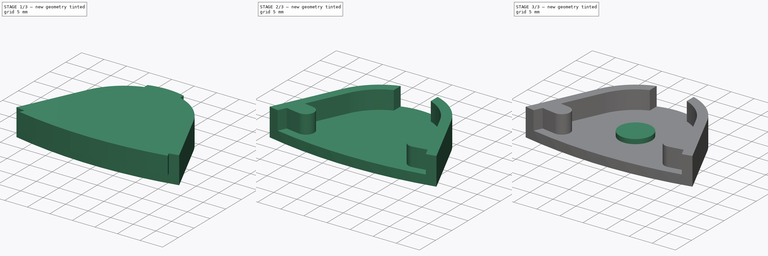
[diagram: build sequence overview — one tinted view per stage of 3, left to right]
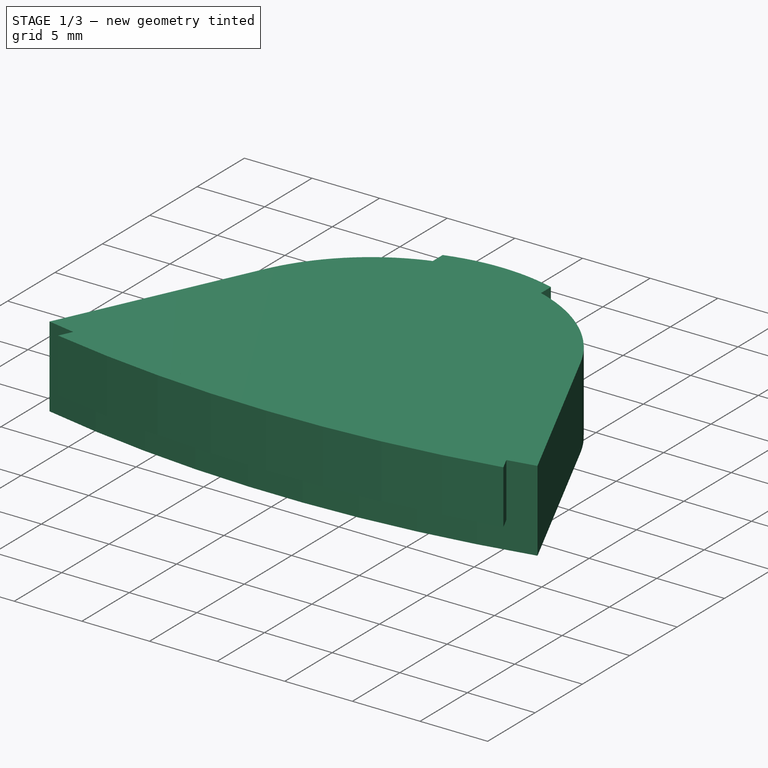
[diagram: stage 1 of 3 — iso view after this stage's code; geometry added in this stage tinted green]
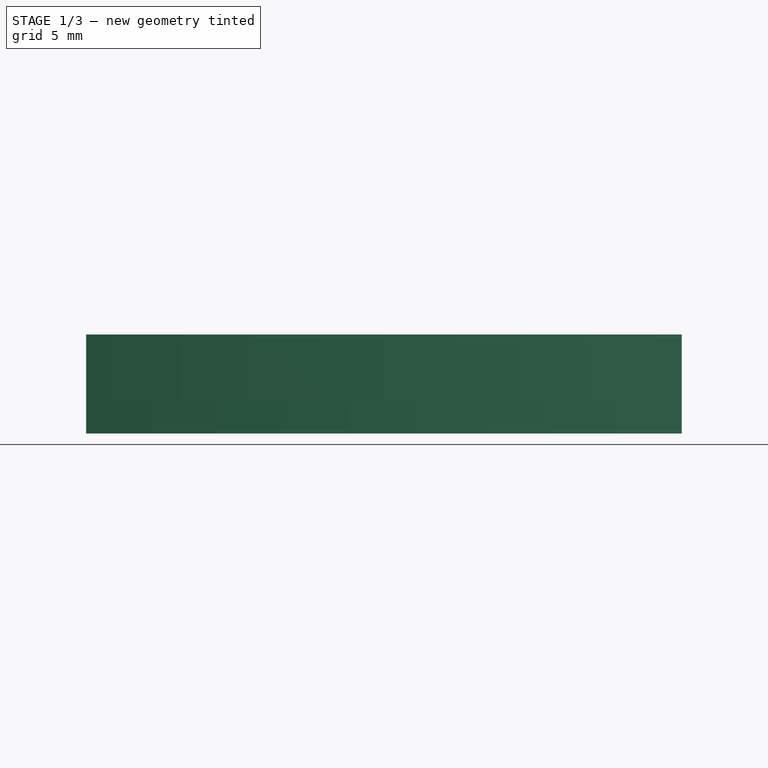
[diagram: stage 1 of 3 — front view after this stage's code; geometry added in this stage tinted green]
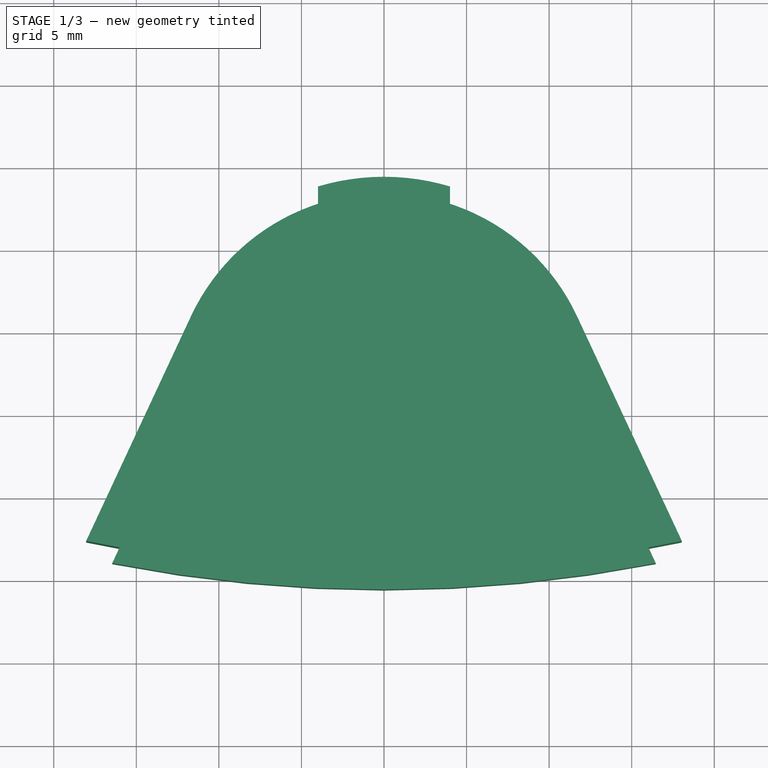
[diagram: stage 1 of 3 — top view after this stage's code; geometry added in this stage tinted green]
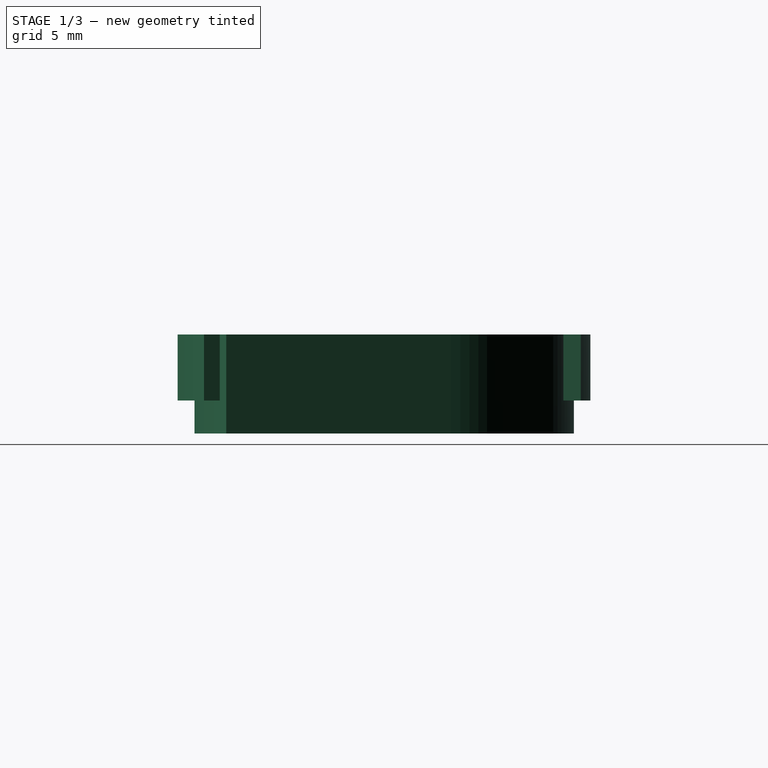
[diagram: stage 1 of 3 — right view after this stage's code; geometry added in this stage tinted green]
FCSTD DOCUMENT  (FreeCAD 0.14R3692 (Git))
Label: Mount_FSR_V2_Cap
License: CC-BY 3.0
LicenseURL: http://creativecommons.org/licenses/by/3.0/
objects: Sketcher::SketchObject×3, PartDesign::Pad×3, Part::Cut×1, Part::MultiFuse×1
note: 11 computed .brp shape members not serialized (recipe doc carries the construction recipe); baked Part::Feature solids carry a one-line shape summary decoded from their .brp

FEATURE [Sketcher::SketchObject] Sketch  label="Base_Sketch"
  sketch-geometry (4):
    g0: ArcOfCircle CenterX=0 CenterY=0 CenterZ=0 NormalX=0 NormalY=0 NormalZ=1 Radius=84.6 StartAngle=4.49754 EndAngle=4.92723
    g1: ArcOfCircle CenterX=0 CenterY=-74.5 CenterZ=0 NormalX=0 NormalY=0 NormalZ=1 Radius=12.9 StartAngle=0.436329 EndAngle=2.70526
    g2: LineSegment StartX=-18.0363 StartY=-82.655 StartZ=0 EndX=-11.6914 EndY=-69.0483 EndZ=0
    g3: LineSegment StartX=18.0363 StartY=-82.655 StartZ=0 EndX=11.6914 EndY=-69.0483 EndZ=0
  constraints (13):
    c: Coincident(g0,g-1)
    c: Radius(g0) = 84.6
    c: Symmetric(g0,g0,g-2)
    c: PointOnObject(g1,g-2)
    c: Radius(g1) = 12.9
    c: Coincident(g2,g0)
    c: Coincident(g2,g1)
    c: Coincident(g3,g0)
    c: Coincident(g3,g1)
    c: Tangent(g1,g3)
    c: Tangent(g1,g2)
    c: DistanceY(g-1,g1) = -74.5
    c: Angle(g-2,g2) = 2.70526
FEATURE [PartDesign::Pad] Pad  label="Base_Pad"
  Length = 6
  Length2 = 100
  Sketch = -> Sketch
  Type = 0
FEATURE [Sketcher::SketchObject] Sketch001  label="Groove_Sketch"
  Placement = pos=(0,0,2) rot=(0,0,1;0rad)
  sketch-geometry (16):
    g0: ArcOfCircle CenterX=0 CenterY=-74.5 CenterZ=0 NormalX=0 NormalY=0 NormalZ=1 Radius=10.9 StartAngle=1.94655 EndAngle=2.70526
    g1: LineSegment StartX=-16.4581 StartY=-84.0029 StartZ=0 EndX=-15.2377 EndY=-81.3858 EndZ=0
    g2: LineSegment StartX=-13.6646 StartY=-78.0123 StartZ=0 EndX=-9.87875 EndY=-69.8935 EndZ=0
    g3: LineSegment StartX=4 StartY=-61.188 StartZ=0 EndX=4 EndY=-64.3605 EndZ=0
    g4: ArcOfCircle CenterX=0 CenterY=-74.5 CenterZ=0 NormalX=0 NormalY=0 NormalZ=1 Radius=10.9 StartAngle=0.436333 EndAngle=1.19504
    g5: LineSegment StartX=9.87875 StartY=-69.8935 StartZ=0 EndX=13.6646 EndY=-78.0123 EndZ=0
    g6: ArcOfCircle CenterX=0 CenterY=0 CenterZ=0 NormalX=0 NormalY=0 NormalZ=1 Radius=79.2 StartAngle=4.86108 EndAngle=4.88579
    g7: LineSegment StartX=16.4581 StartY=-84.0029 StartZ=0 EndX=15.2377 EndY=-81.3858 EndZ=0
    g8: ArcOfCircle CenterX=0 CenterY=0 CenterZ=0 NormalX=0 NormalY=0 NormalZ=1 Radius=82.8 StartAngle=4.86108 EndAngle=4.89747
    g9: ArcOfCircle CenterX=12 CenterY=-80.1062 CenterZ=0 NormalX=0 NormalY=0 NormalZ=1 Radius=1.8 StartAngle=1.7195 EndAngle=4.86108
    g10: ArcOfCircle CenterX=0 CenterY=0 CenterZ=0 NormalX=0 NormalY=0 NormalZ=1 Radius=85.6 StartAngle=4.51892 EndAngle=4.90586
    g11: ArcOfCircle CenterX=0 CenterY=-74.5 CenterZ=0 NormalX=0 NormalY=0 NormalZ=1 Radius=13.9 StartAngle=1.2789 EndAngle=1.86269
    g12: LineSegment StartX=-4 StartY=-64.3605 StartZ=0 EndX=-4 EndY=-61.188 EndZ=0
    g13: ArcOfCircle CenterX=0 CenterY=0 CenterZ=0 NormalX=0 NormalY=0 NormalZ=1 Radius=79.2 StartAngle=4.53899 EndAngle=4.56369
    g14: ArcOfCircle CenterX=0 CenterY=-1e-12 CenterZ=0 NormalX=0 NormalY=0 NormalZ=1 Radius=82.8 StartAngle=4.5273 EndAngle=4.56369
    g15: ArcOfCircle CenterX=-12 CenterY=-80.1062 CenterZ=0 NormalX=0 NormalY=0 NormalZ=1 Radius=1.8 StartAngle=4.56369 EndAngle=7.70528
  constraints (46):
    c: Symmetric(g11,g3,g-2)
    c: Radius(g0) = 10.9
    c: DistanceY(g-1,g0) = -74.5
    c: Symmetric(g1,g7,g-2)
    c: Coincident(g2,g0)
    c: Tangent(g2,g0)
    c: Symmetric(g0,g3,g-2)
    c: Coincident(g4,g0)
    c: Coincident(g4,g3)
    c: Symmetric(g4,g0,g-2)
    c: Coincident(g5,g4)
    c: Symmetric(g2,g5,g-2)
    c: Coincident(g6,g-1)
    c: Coincident(g6,g5)
    c: Symmetric(g1,g7,g-2)
    c: Coincident(g8,g-1)
    c: Coincident(g8,g7)
    c: Coincident(g9,g6)
    c: Coincident(g9,g8)
    c: Coincident(g10,g-1)
    c: Coincident(g10,g1)
    c: Coincident(g10,g7)
    c: Tangent(g1,g2)
    c: Radius(g10) = 85.6
    c: Angle(g-2,g1) = 2.70526
    c: DistanceX(g-1,g0) = -4
    c: Coincident(g11,g0)
    c: Coincident(g11,g3)
    c: Radius(g11) = 13.9
    c: Coincident(g12,g0)
    c: Coincident(g12,g11)
    c: Vertical(g12)
    c: Coincident(g13,g-1)
    c: Coincident(g13,g2)
    c: Radius(g13) = 79.2
    c: Coincident(g14,g-1)
    c: Coincident(g14,g1)
    c: Radius(g14) = 82.8
    c: Coincident(g15,g13)
    c: Coincident(g15,g14)
    c: Tangent(g15,g14)
    c: DistanceX(g-1,g15) = -12
    c: Distance(g-1,g15) = 81
    c: Symmetric(g13,g6,g-2)
    c: Symmetric(g15,g9,g-2)
    c: Symmetric(g14,g8,g-2)
FEATURE [PartDesign::Pad] Pad001  label="Groove_Pad"
  Length = 4
  Length2 = 100
  Placement = pos=(0,0,2) rot=(0,0,1;0rad)
  Sketch = -> Sketch001
  Type = 0
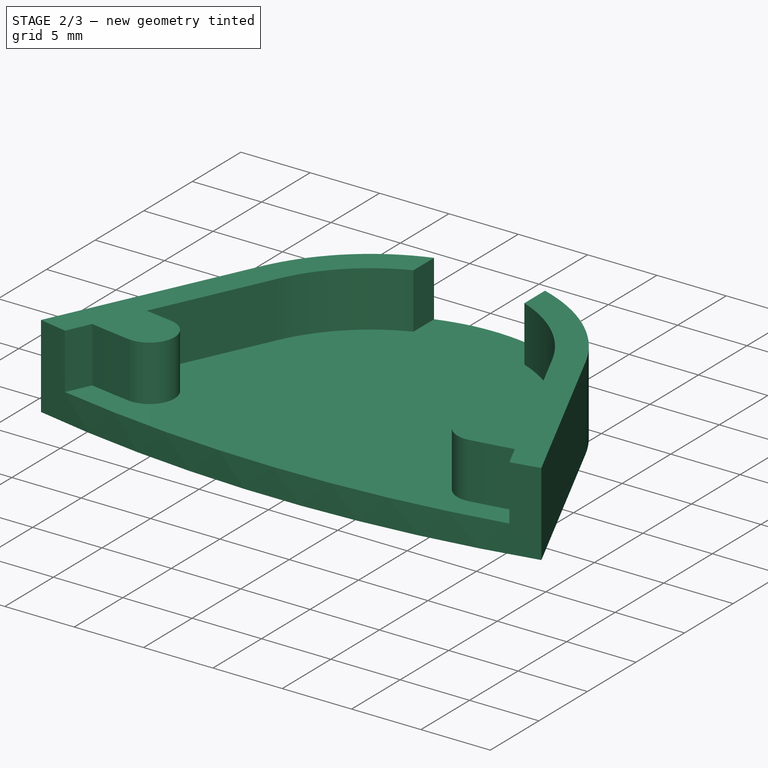
[diagram: stage 2 of 3 — iso view after this stage's code; geometry added in this stage tinted green]
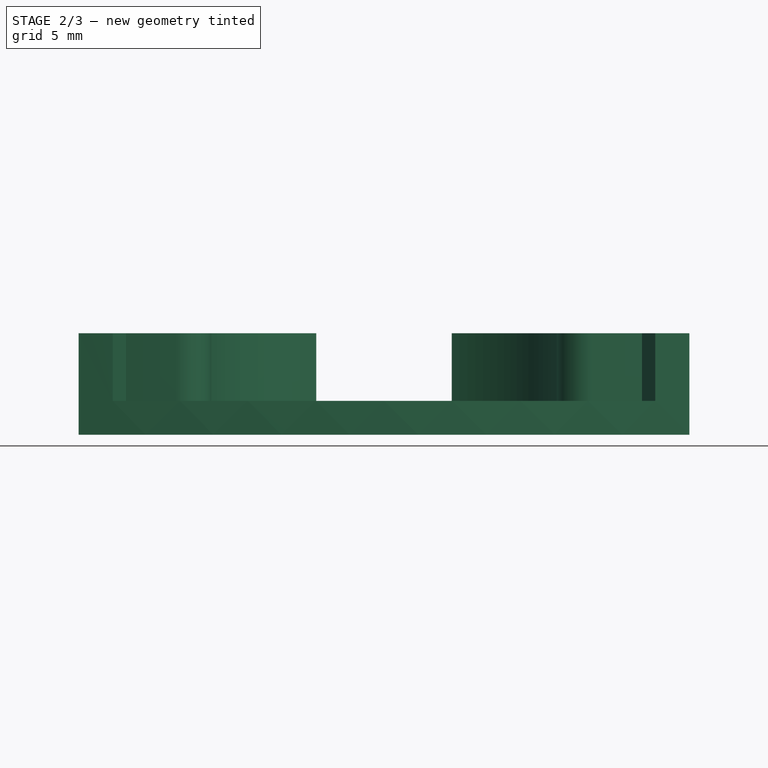
[diagram: stage 2 of 3 — front view after this stage's code; geometry added in this stage tinted green]
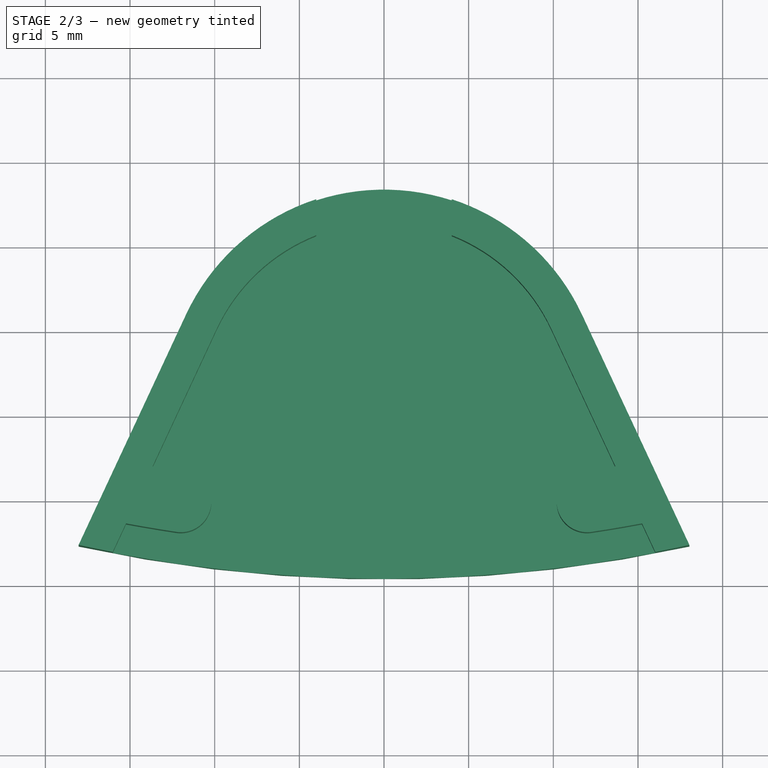
[diagram: stage 2 of 3 — top view after this stage's code; geometry added in this stage tinted green]
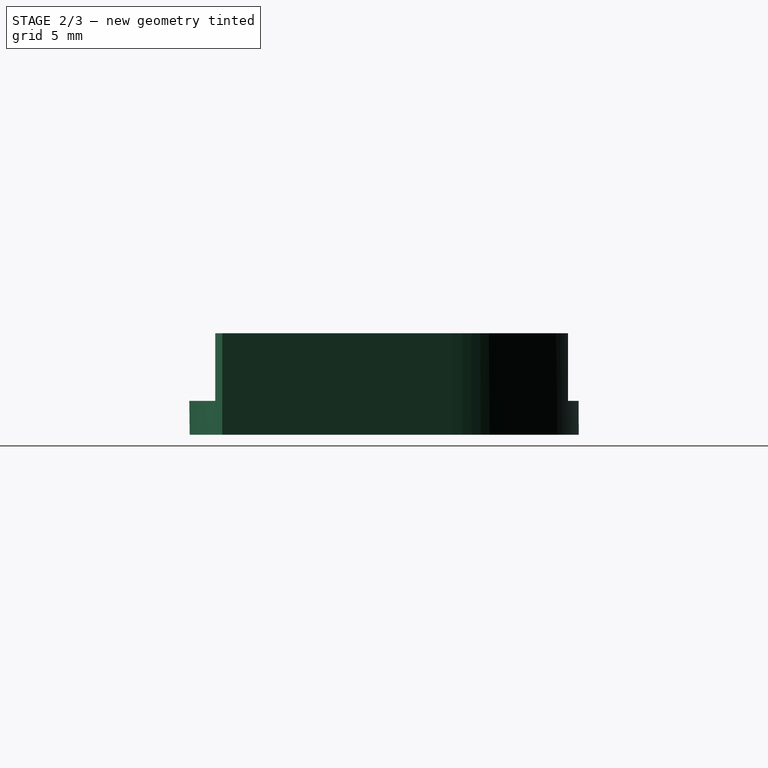
[diagram: stage 2 of 3 — right view after this stage's code; geometry added in this stage tinted green]
FEATURE [Part::Cut] Cut  label="Groove_Cut"
  Base = -> Pad
  Tool = -> Pad001
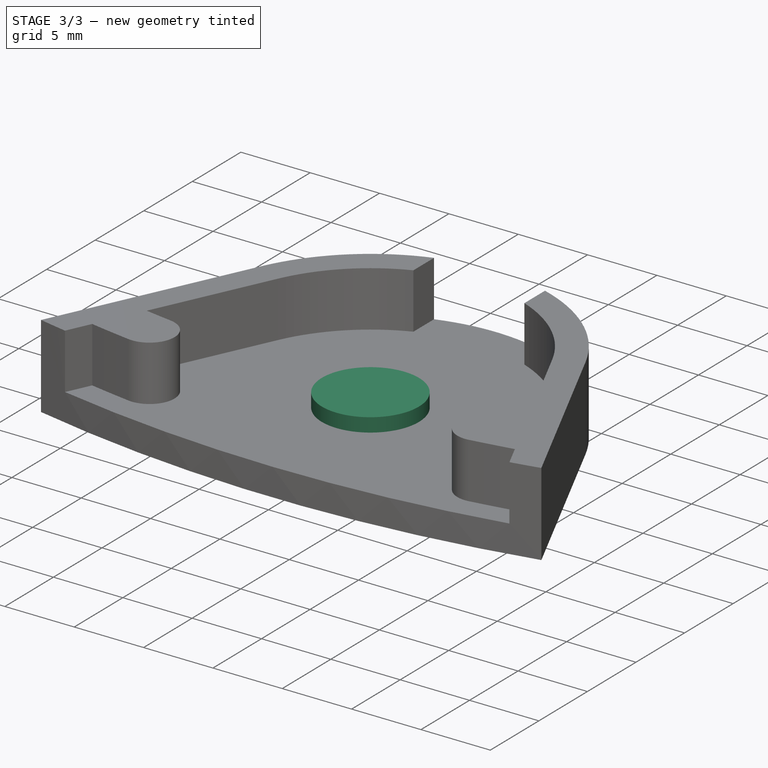
[diagram: stage 3 of 3 — iso view after this stage's code; geometry added in this stage tinted green]
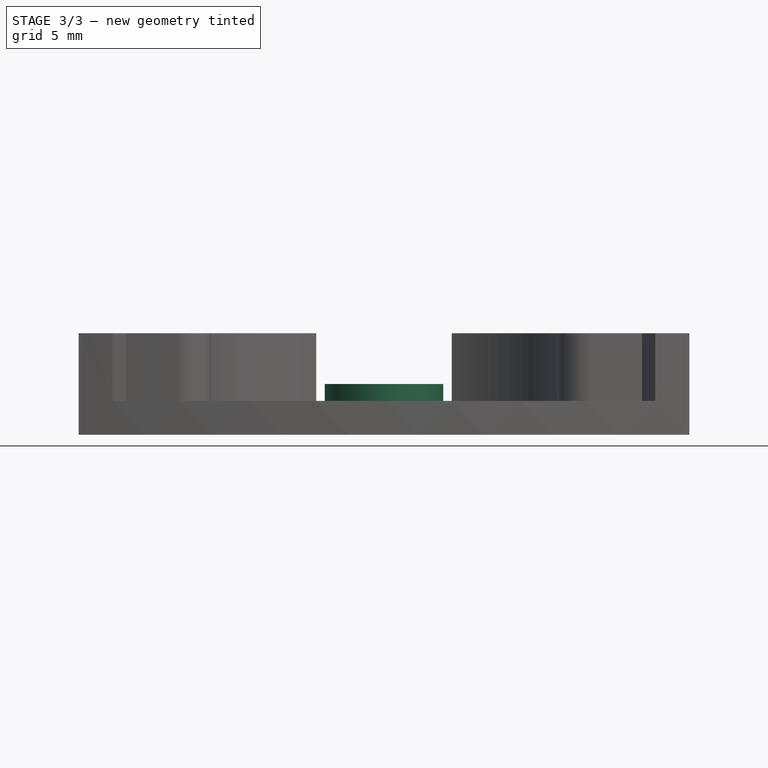
[diagram: stage 3 of 3 — front view after this stage's code; geometry added in this stage tinted green]
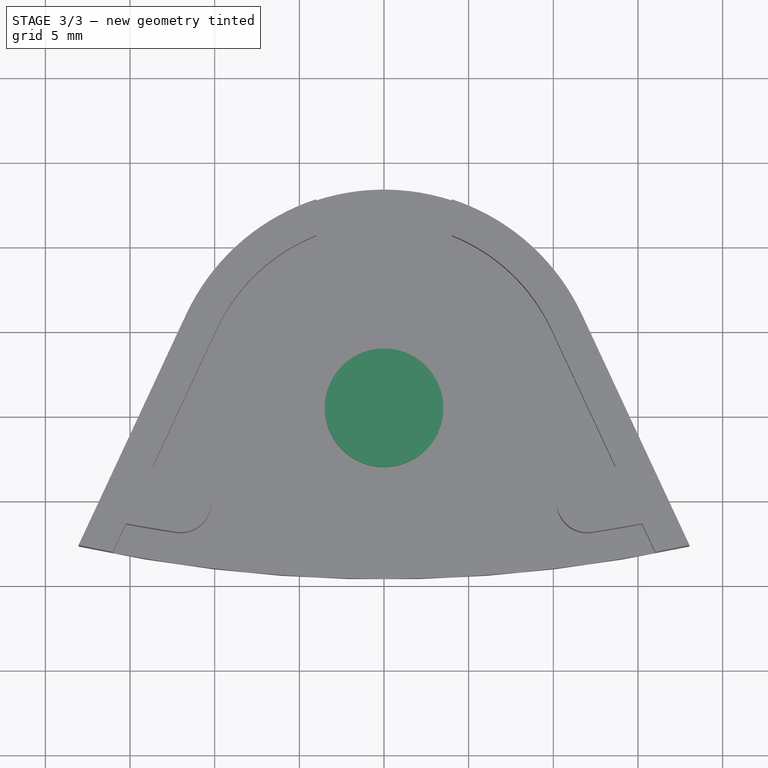
[diagram: stage 3 of 3 — top view after this stage's code; geometry added in this stage tinted green]
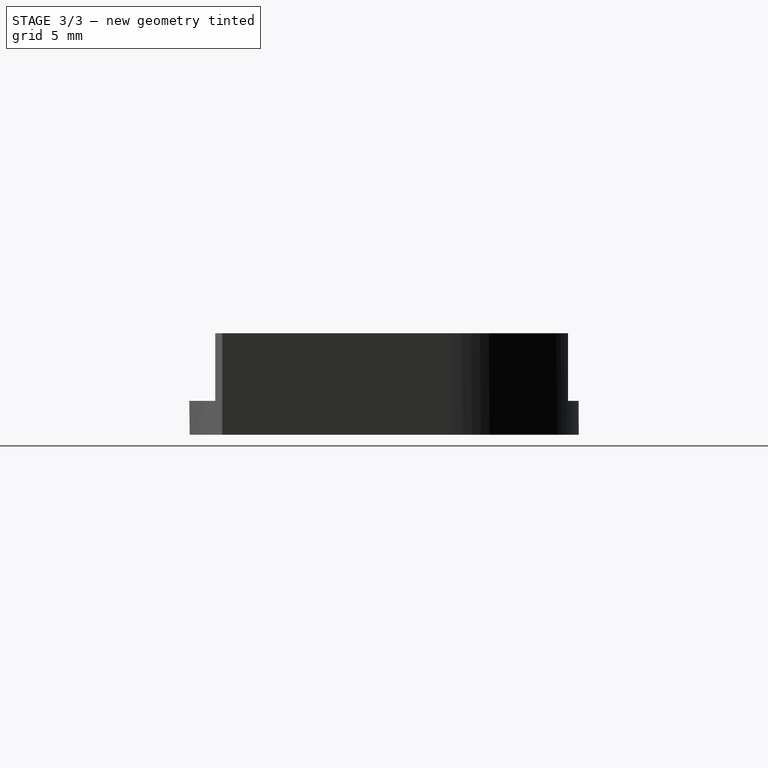
[diagram: stage 3 of 3 — right view after this stage's code; geometry added in this stage tinted green]
FEATURE [Sketcher::SketchObject] Sketch002  label="Button_Sketch"
  sketch-geometry (1):
    g0: Circle CenterX=0 CenterY=-74.5 CenterZ=0 NormalX=0 NormalY=0 NormalZ=1 Radius=3.5
  constraints (3):
    c: PointOnObject(g0,g-2)
    c: DistanceY(g-1,g0) = -74.5
    c: Radius(g0) = 3.5
FEATURE [PartDesign::Pad] Pad002  label="Button_Pad"
  Length = 3
  Length2 = 100
  Sketch = -> Sketch002
  Type = 0
FEATURE [Part::MultiFuse] Fusion
  Shapes = -> [Pad002,Cut]
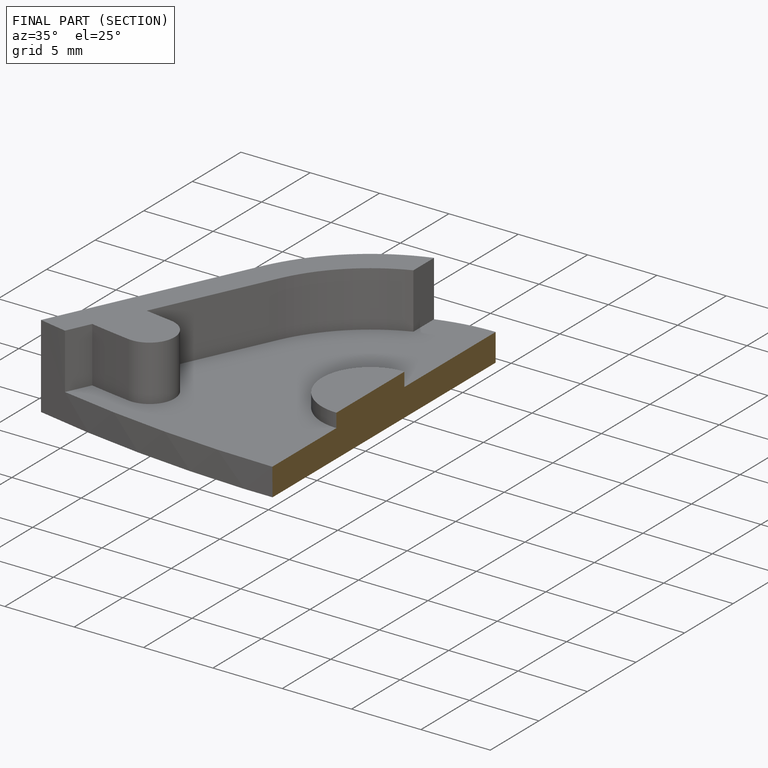
[diagram: finished part — half-section view (interior)]
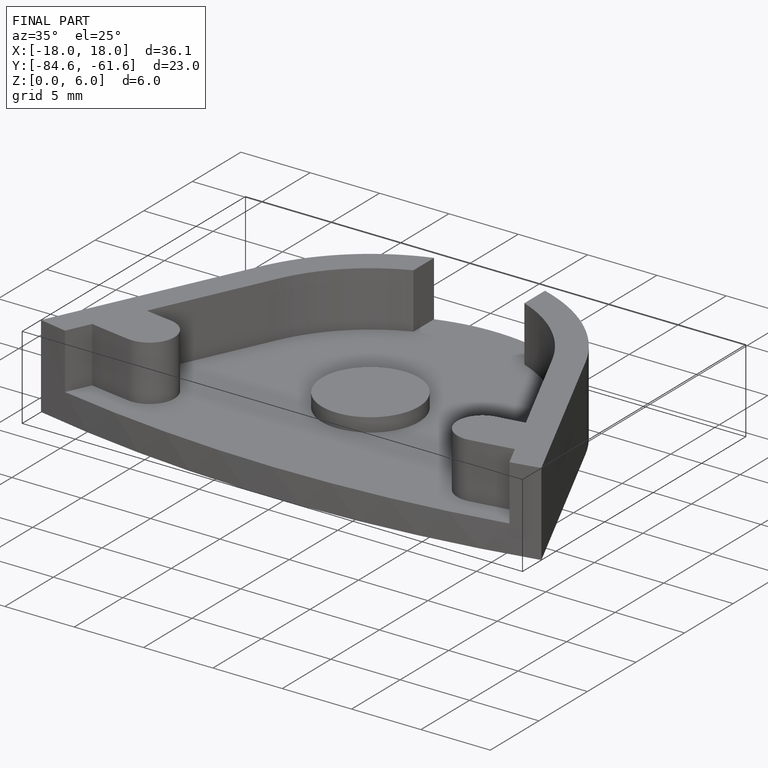
[diagram: finished part — iso view with bounding-box wireframe]
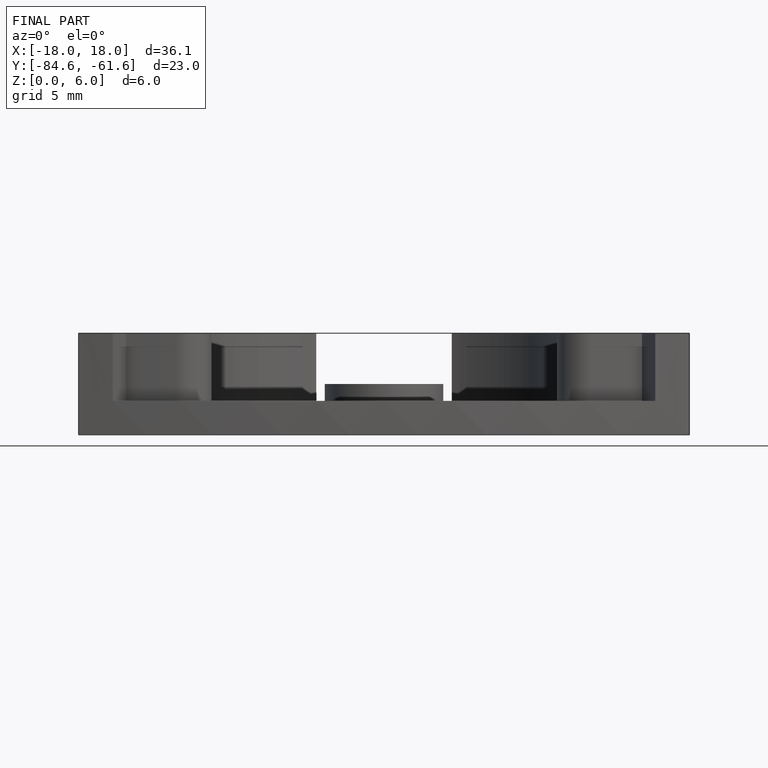
[diagram: finished part — front view with bounding-box wireframe]
